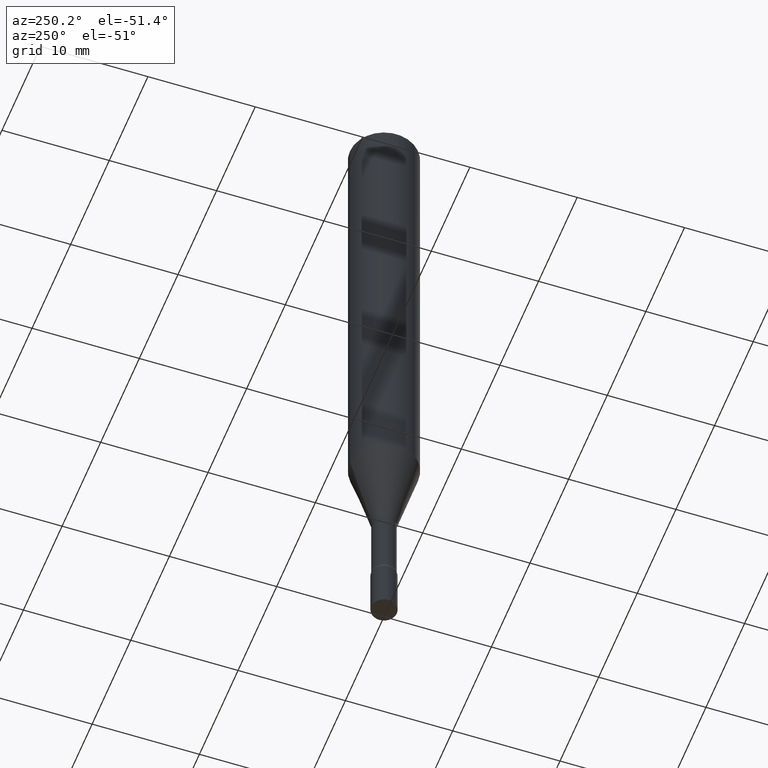
[diagram: clean part render]
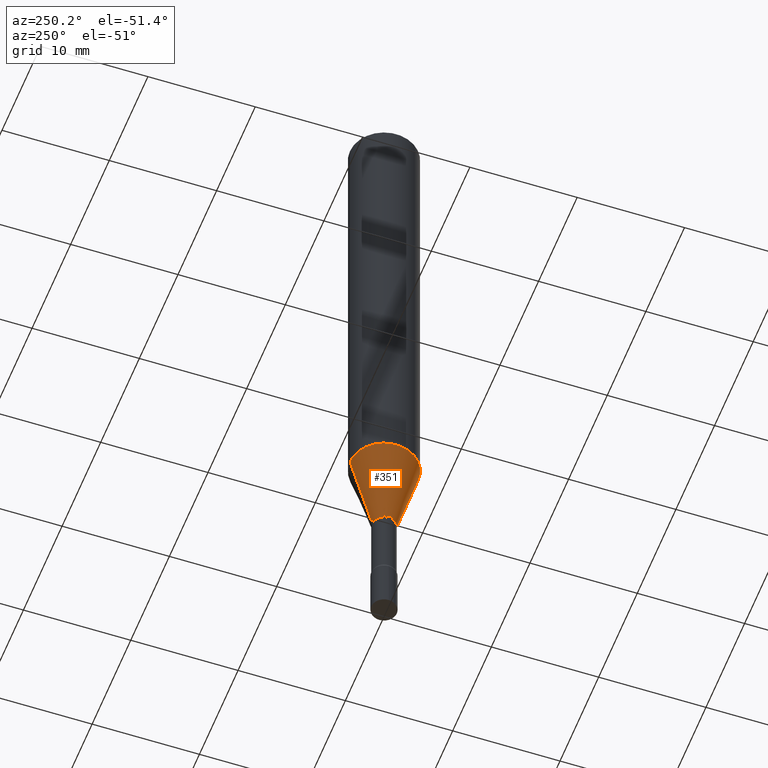
[diagram: same view with one face highlighted and labeled with its STEP entity id]
A machine part, auxiliary view. The second image highlights one B-rep face of the part: STEP entity #351.
In plain terms, the highlighted conical surface has half-angle 15 deg.
Its self-contained STEP definition (entity closure, byte-faithful):
#35 = DIRECTION ( 'NONE',  ( -2.445616737647772983E-29, 3.491269492568914221E-15, 1.000000000000000000 ) ) ;
#40 = EDGE_CURVE ( 'NONE', #461, #263, #472, .T. ) ;
#52 = DIRECTION ( 'NONE',  ( -6.982962677686264344E-15, -1.000000000000000000, 6.123693927591976054E-15 ) ) ;
#64 = AXIS2_PLACEMENT_3D ( 'NONE', #487, #125, #52 ) ;
#67 = VERTEX_POINT ( 'NONE', #520 ) ;
#76 = CARTESIAN_POINT ( 'NONE',  ( 4.238442338125165839E-29, -6.050639171426887853E-15, -1.733077089667678816 ) ) ;
#80 = CIRCLE ( 'NONE', #398, 0.04461111260566397174 ) ;
#123 = EDGE_CURVE ( 'NONE', #482, #263, #163, .T. ) ;
#125 = DIRECTION ( 'NONE',  ( -2.445616737647772983E-29, 3.491269492568914221E-15, 1.000000000000000000 ) ) ;
#147 = EDGE_CURVE ( 'NONE', #67, #461, #193, .T. ) ;
#157 = EDGE_CURVE ( 'NONE', #67, #482, #80, .T. ) ;
#163 = LINE ( 'NONE', #325, #204 ) ;
#168 = ORIENTED_EDGE ( 'NONE', *, *, #40, .F. ) ;
#184 = CONICAL_SURFACE ( 'NONE', #64, 0.04461111260566397174, 0.2617993877991502405 ) ;
#189 = DIRECTION ( 'NONE',  ( -2.445616737647772983E-29, 3.491269492568914221E-15, 1.000000000000000000 ) ) ;
#193 = LINE ( 'NONE', #361, #256 ) ;
#195 = ORIENTED_EDGE ( 'NONE', *, *, #157, .T. ) ;
#202 = ORIENTED_EDGE ( 'NONE', *, *, #123, .T. ) ;
#204 = VECTOR ( 'NONE', #281, 39.37007874015748143 ) ;
#235 = DIRECTION ( 'NONE',  ( 1.839019923739599921E-15, 0.2588190451025249028, 0.9659258262890670910 ) ) ;
#243 = FACE_OUTER_BOUND ( 'NONE', #494, .T. ) ;
#256 = VECTOR ( 'NONE', #235, 39.37007874015748143 ) ;
#263 = VERTEX_POINT ( 'NONE', #328 ) ;
#274 = DIRECTION ( 'NONE',  ( -6.982962677686265922E-15, -1.000000000000000000, 4.370956789862821150E-15 ) ) ;
#281 = DIRECTION ( 'NONE',  ( -1.807323732225329745E-15, -0.2588190451025181305, 0.9659258262890689783 ) ) ;
#312 = AXIS2_PLACEMENT_3D ( 'NONE', #76, #35, #274 ) ;
#325 = CARTESIAN_POINT ( 'NONE',  ( -3.115177343353610166E-16, -0.04461111260567106329, -2.033092501787272965 ) ) ;
#328 = CARTESIAN_POINT ( 'NONE',  ( -8.728703347107405431E-16, -0.1250000000000059952, -1.733077089667678150 ) ) ;
#350 = CARTESIAN_POINT ( 'NONE',  ( 8.881784197001674364E-16, 0.1249999999999939770, -1.733077089667679260 ) ) ;
#351 = ADVANCED_FACE ( 'NONE', ( #243 ), #184, .T. ) ;
#358 = DIRECTION ( 'NONE',  ( -6.982962677686264344E-15, -1.000000000000000000, 6.123693927591976054E-15 ) ) ;
#361 = CARTESIAN_POINT ( 'NONE',  ( 3.169810199613533485E-16, 0.04461111260565687325, -2.033092501787273410 ) ) ;
#398 = AXIS2_PLACEMENT_3D ( 'NONE', #405, #189, #358 ) ;
#405 = CARTESIAN_POINT ( 'NONE',  ( 4.972165051557140757E-29, -7.098073827060517984E-15, -2.033092501787272965 ) ) ;
#417 = ORIENTED_EDGE ( 'NONE', *, *, #147, .F. ) ;
#446 = CARTESIAN_POINT ( 'NONE',  ( -3.115177343353610166E-16, -0.04461111260567106329, -2.033092501787272965 ) ) ;
#461 = VERTEX_POINT ( 'NONE', #350 ) ;
#472 = CIRCLE ( 'NONE', #312, 0.1250000000000000000 ) ;
#482 = VERTEX_POINT ( 'NONE', #446 ) ;
#487 = CARTESIAN_POINT ( 'NONE',  ( 4.972165051557140757E-29, -7.098073827060517984E-15, -2.033092501787272965 ) ) ;
#494 = EDGE_LOOP ( 'NONE', ( #417, #195, #202, #168 ) ) ;
#520 = CARTESIAN_POINT ( 'NONE',  ( 6.025797198307604171E-16, 0.04461111260565687325, -2.033092501787273410 ) ) ;